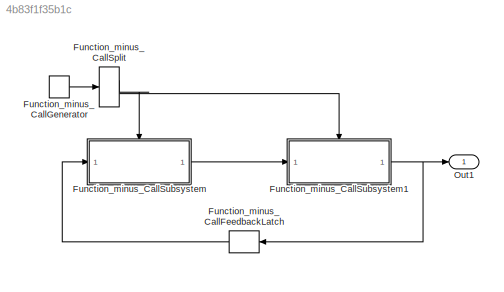
MODEL slx_4b83f1f35b1c
KIND model
CONFIG AbsTol = auto
CONFIG EnableMultiTasking = off
CONFIG FixedStep = 0.200000
CONFIG MaxStep = auto
CONFIG MinStep = auto
CONFIG RelTol = 1e-3
CONFIG SampleTimeConstraint = Unconstrained
CONFIG Solver = FixedStepDiscrete
CONFIG SolverName = FixedStepDiscrete
CONFIG StartTime = 0.0
CONFIG StopTime = 100
BLOCK [FunctionCallFeedbackLatch] Function_minus_CallFeedbackLatch
  InputPortMap = u0
  OutputPortMap = o0
  Ports = [1, 1]
BLOCK [S-Function] Function_minus_CallGenerator
  AncestorBlock = simulink/Ports &\nSubsystems/Function-Call\nGenerator
  EnableBusSupport = off
  FunctionName = fcncallgen
  Parameters = sample_time,numberOfIterations
  Ports = [0, 1]
  SFcnIsStateOwnerBlock = off
  SFunctionDeploymentMode = off
BLOCK [FunctionCallSplit] Function_minus_CallSplit
  NumOutputPorts = 2
  Ports = [1, 2]
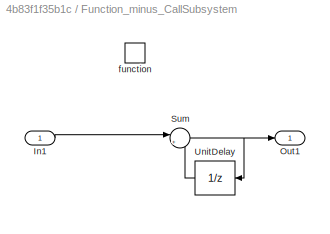
BLOCK [SubSystem] Function_minus_CallSubsystem
  Ports = [1, 1, 0, 1]
  RequestExecContextInheritance = off
  TreatAsAtomicUnit = on
  Variant = off
BLOCK [Inport] Function_minus_CallSubsystem/In1
  IconDisplay = Port number
BLOCK [Outport] Function_minus_CallSubsystem/Out1
  IconDisplay = Port number
BLOCK [Sum] Function_minus_CallSubsystem/Sum
  IconShape = round
  InputSameDT = off
  Inputs = |++
  OutDataTypeStr = Inherit: Inherit via internal rule
  Ports = [2, 1]
  SaturateOnIntegerOverflow = off
BLOCK [UnitDelay] Function_minus_CallSubsystem/UnitDelay
  InputProcessing = Elements as channels (sample based)
  SampleTime = -1
BLOCK [TriggerPort] Function_minus_CallSubsystem/function
  Ports = []
  StatesWhenEnabling = held
  TriggerType = function-call
  VariantControl = Variant
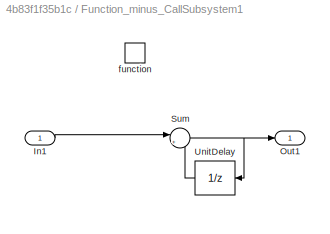
BLOCK [SubSystem] Function_minus_CallSubsystem1
  Ports = [1, 1, 0, 1]
  RequestExecContextInheritance = off
  TreatAsAtomicUnit = on
  Variant = off
BLOCK [Inport] Function_minus_CallSubsystem1/In1
  IconDisplay = Port number
BLOCK [Outport] Function_minus_CallSubsystem1/Out1
  IconDisplay = Port number
BLOCK [Sum] Function_minus_CallSubsystem1/Sum
  IconShape = round
  InputSameDT = off
  Inputs = |++
  OutDataTypeStr = Inherit: Inherit via internal rule
  Ports = [2, 1]
  SaturateOnIntegerOverflow = off
BLOCK [UnitDelay] Function_minus_CallSubsystem1/UnitDelay
  InputProcessing = Elements as channels (sample based)
  SampleTime = -1
BLOCK [TriggerPort] Function_minus_CallSubsystem1/function
  Ports = []
  StatesWhenEnabling = held
  TriggerType = function-call
  VariantControl = Variant
BLOCK [Outport] Out1
  IconDisplay = Port number
LINE Function_minus_CallFeedbackLatch:1 -> Function_minus_CallSubsystem:1
LINE Function_minus_CallGenerator:1 -> Function_minus_CallSplit:1
LINE Function_minus_CallSplit:1 -> Function_minus_CallSubsystem:trigger
LINE Function_minus_CallSplit:2 -> Function_minus_CallSubsystem1:trigger
LINE Function_minus_CallSubsystem/In1:1 -> Function_minus_CallSubsystem/Sum:1
NET Function_minus_CallSubsystem/Sum:1 -> Function_minus_CallSubsystem/Out1:1, Function_minus_CallSubsystem/UnitDelay:1
LINE Function_minus_CallSubsystem/UnitDelay:1 -> Function_minus_CallSubsystem/Sum:2
LINE Function_minus_CallSubsystem1/In1:1 -> Function_minus_CallSubsystem1/Sum:1
NET Function_minus_CallSubsystem1/Sum:1 -> Function_minus_CallSubsystem1/Out1:1, Function_minus_CallSubsystem1/UnitDelay:1
LINE Function_minus_CallSubsystem1/UnitDelay:1 -> Function_minus_CallSubsystem1/Sum:2
NET Function_minus_CallSubsystem1:1 -> Function_minus_CallFeedbackLatch:1, Out1:1
LINE Function_minus_CallSubsystem:1 -> Function_minus_CallSubsystem1:1
note: NET lines group one-source signal fan-out (src -> all destinations, sorted); 1:1 wires keep LINE
